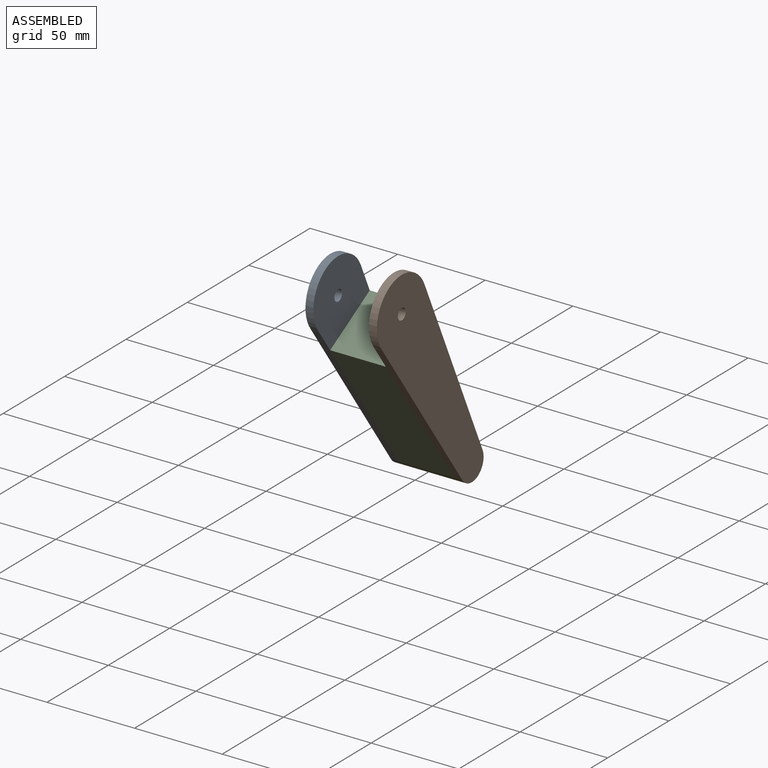
[diagram: assembled view]
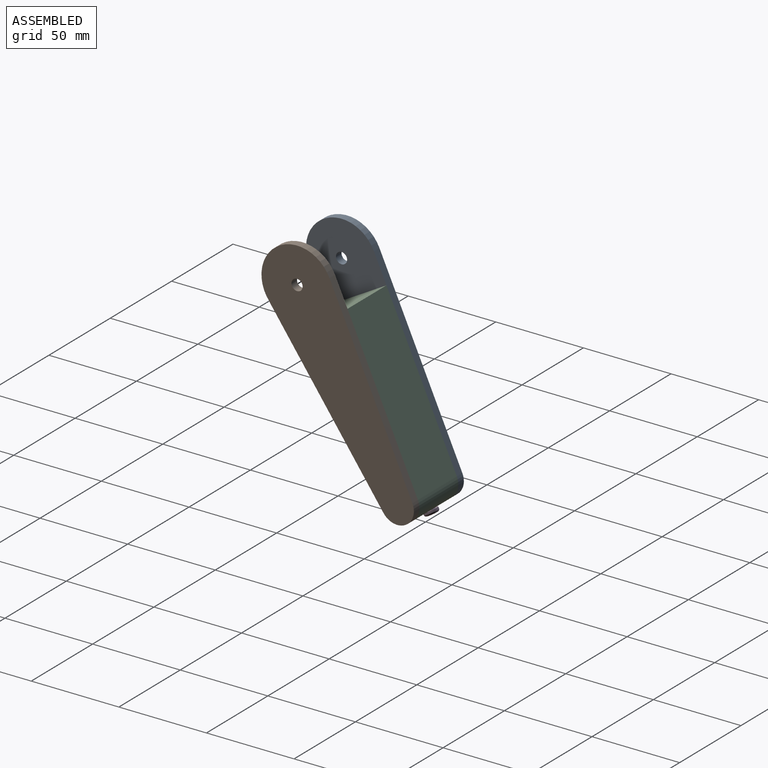
[diagram: assembled view, second angle]
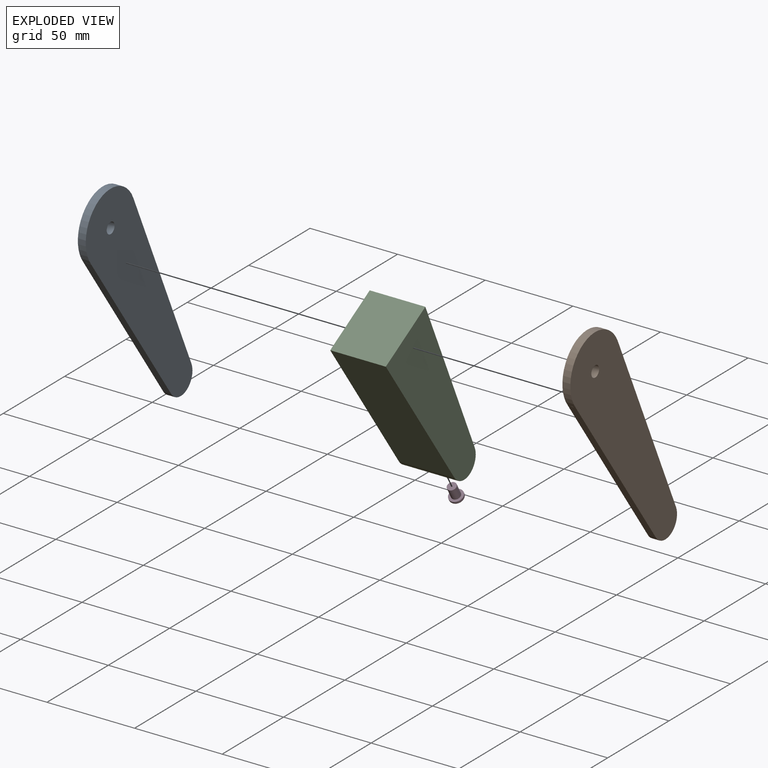
[diagram: exploded view]
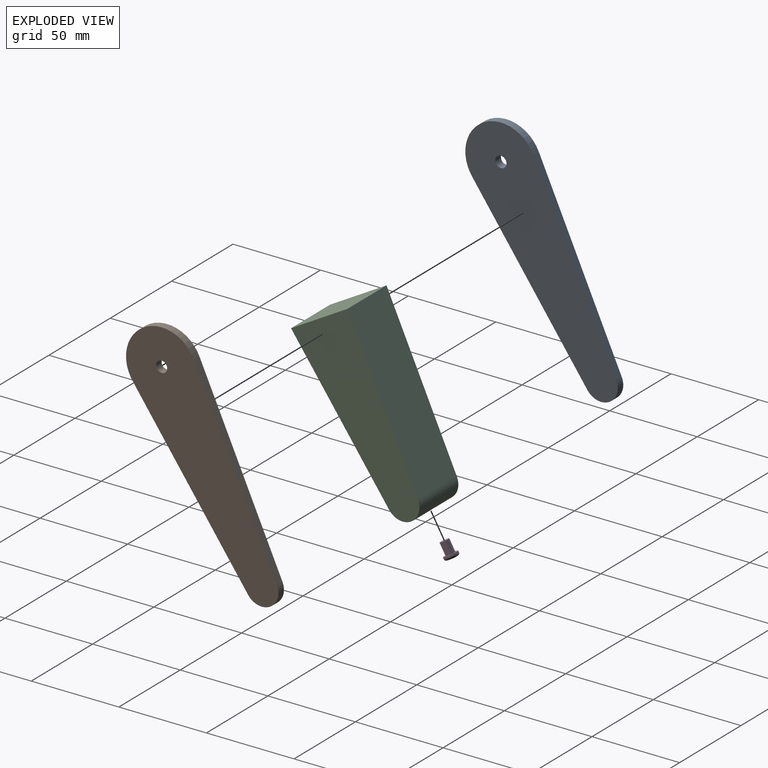
[diagram: exploded view, second angle]
ASSEMBLY  parts=4 mates=3
PART A: 8 faces, bbox 4.5x87x128.8 mm
  f0: plane 4.5x0.04mm, normal (0,0,1), area 0.2mm2, adj f1,f4,f6,f7
  f1: cylinder r=20.32mm len=38.8mm, axis (1,0,0), area 309.8mm2, adj f0,f2,f6,f7
  f2: plane 103.48x47.33mm, normal (0,0.91,0.42), area 512.1mm2, adj f1,f3,f6,f7
  f3: cylinder r=9.53mm len=17.29mm, axis (1,0,0), area 126.5mm2, adj f2,f4,f6,f7
  f4: plane 91.81x65.29mm, normal (0,-0.81,-0.58), area 507mm2, adj f0,f3,f6,f7
  f5: cylinder r=3.17mm len=6.35mm, axis (1,0,0), area 89.8mm2, adj f6,f7
  f6: plane 128.83x87mm, normal (-1,0,0), area 4185.9mm2, adj f0,f1,f2,f3,f4,f5
  f7: plane 128.83x87mm, normal (1,0,0), area 4185.9mm2, adj f0,f1,f2,f3,f4,f5
PART B: 8 faces, bbox 4.5x87x128.8 mm
  f0: plane 4.5x0.04mm, normal (0,0,1), area 0.2mm2, adj f1,f4,f6,f7
  f1: cylinder r=20.32mm len=38.8mm, axis (-1,0,0), area 309.8mm2, adj f0,f2,f6,f7
  f2: plane 103.48x47.33mm, normal (0,0.91,0.42), area 512.1mm2, adj f1,f3,f6,f7
  f3: cylinder r=9.53mm len=17.29mm, axis (-1,0,0), area 126.5mm2, adj f2,f4,f6,f7
  f4: plane 91.81x65.29mm, normal (0,-0.81,-0.58), area 507mm2, adj f0,f3,f6,f7
  f5: cylinder r=3.17mm len=6.35mm, axis (-1,0,0), area 89.8mm2, adj f6,f7
  f6: plane 128.83x87mm, normal (1,0,0), area 4185.9mm2, adj f0,f1,f2,f3,f4,f5
  f7: plane 128.83x87mm, normal (-1,0,0), area 4185.9mm2, adj f0,f1,f2,f3,f4,f5
PART C: 8 faces, bbox 31.8x73.3x101.3 mm
  f0: plane 101.32x73.26mm, normal (1,0,0), area 2825.9mm2, adj f1,f2,f3,f4
  f1: plane 32.22x31.75mm, normal (0,-0.5,0.87), area 1181.4mm2, adj f0,f2,f4,f5
  f2: plane 78.71x55.97mm, normal (0,-0.81,-0.58), area 3066.5mm2, adj f0,f1,f3,f5
  f3: cylinder r=9.53mm len=31.75mm, axis (-1,0,0), area 873.1mm2, adj f0,f2,f4,f5,f6
  f4: plane 87.83x40.18mm, normal (0,0.91,0.42), area 3066.5mm2, adj f0,f1,f3,f5
  f5: plane 101.32x73.26mm, normal (-1,0,0), area 2825.9mm2, adj f1,f2,f3,f4
  f6: cylinder r=2.5mm len=8.55mm, axis (0,-0.5,0.87), area 107.1mm2, adj f3,f7
  f7: plane 5x4.33mm, normal (0,0.5,-0.87), area 19.6mm2, adj f6
PART D: 6 faces, bbox 9.5x8.3x10.7 mm
  f0: plane 5.49x5.11mm, normal (0.43,-0.25,-0.87), area 25.2mm2, adj f5
  f1: cylinder r=3.94mm len=7.86mm, axis (-0.43,0.25,0.87), area 23mm2, adj f2,f5
  f2: plane 7.62x7.1mm, normal (-0.43,0.25,0.87), area 29.1mm2, adj f1,f3
  f3: cylinder r=2.5mm len=8.55mm, axis (-0.43,0.25,0.87), area 109.7mm2, adj f2,f4
  f4: plane 4.84x4.51mm, normal (-0.43,0.25,0.87), area 19.6mm2, adj f3
  f5: torus R=2.83mm, axis (0.43,-0.25,-0.87), area 38.5mm2, adj f0,f1
PLACE A t=(-17.49,-85.39,76.32)mm
PLACE B t=(-17.49,-85.39,76.32)mm
PLACE C t=(-17.49,-85.39,76.32)mm
PLACE D rot(axis=(0.86,0.5,0.06),52.4deg) t=(-47.58,-36.7,104.43)mm
MATE fastened B.f3 <-> C.f3  axis (-1,0,0) through (-1.62,20.85,-35.37)mm
MATE fastened A.f3 <-> C.f3  axis (1,0,0) through (-33.37,20.85,-35.37)mm
MATE fastened D.f1 <-> C.f6  axis (0,-0.5,0.87) through (-17.49,22.12,-37.57)mm
